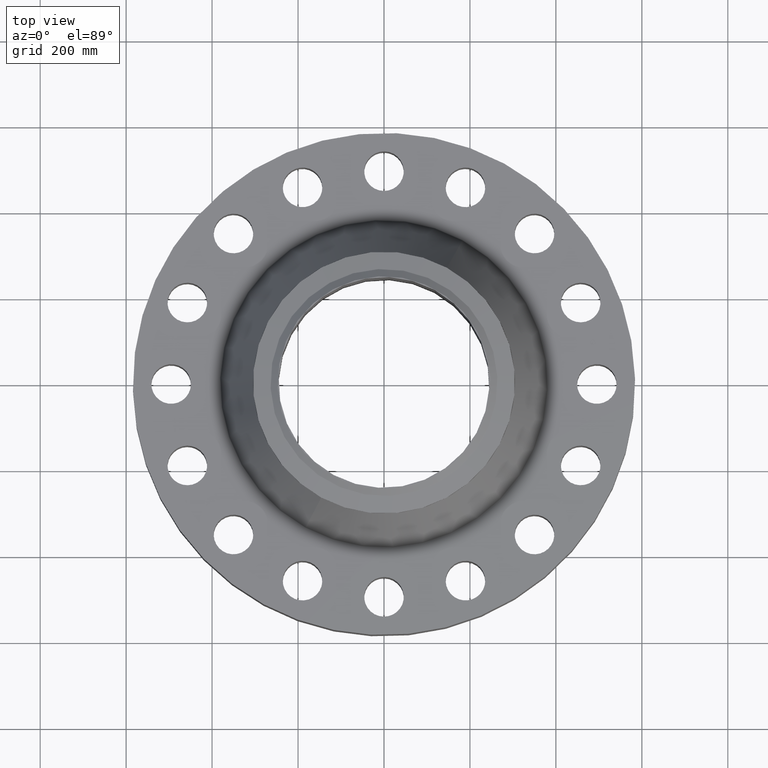
[diagram: clean part render]
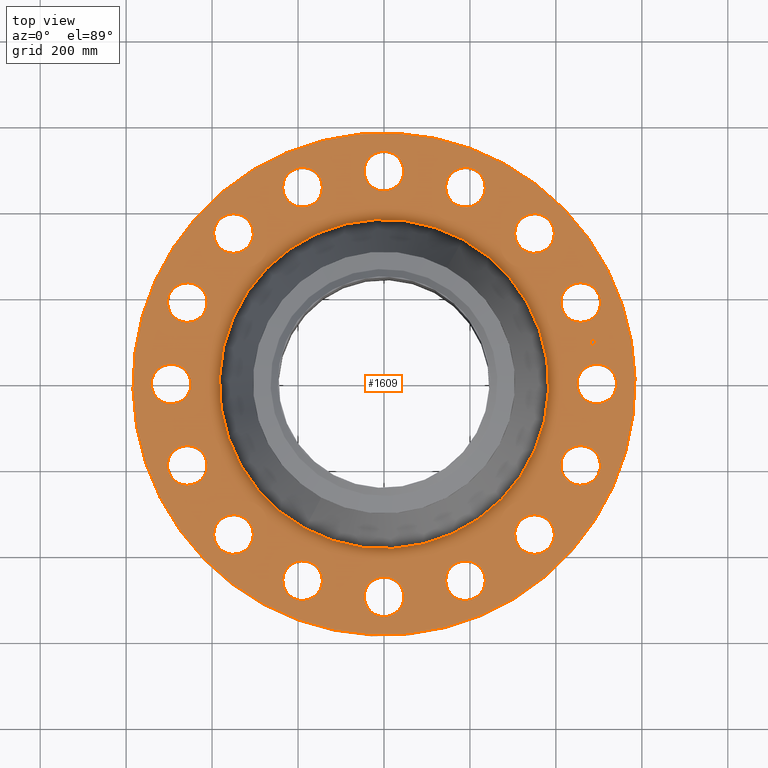
[diagram: same view with one face highlighted and labeled with its STEP entity id]
A machine part, top view. The second image highlights one B-rep face of the part: STEP entity #1609.
In plain terms, the highlighted planar face has unit normal (0, 0, -1).
Its self-contained STEP definition (entity closure, byte-faithful):
#65=AXIS2_PLACEMENT_3D('Circle Axis2P3D',#63,#64,$) ;
#82=AXIS2_PLACEMENT_3D('Circle Axis2P3D',#80,#81,$) ;
#115=AXIS2_PLACEMENT_3D('Circle Axis2P3D',#113,#114,$) ;
#139=AXIS2_PLACEMENT_3D('Circle Axis2P3D',#137,#138,$) ;
#156=AXIS2_PLACEMENT_3D('Circle Axis2P3D',#154,#155,$) ;
#191=AXIS2_PLACEMENT_3D('Circle Axis2P3D',#189,#190,$) ;
#890=AXIS2_PLACEMENT_3D('Circle Axis2P3D',#888,#889,$) ;
#902=AXIS2_PLACEMENT_3D('Circle Axis2P3D',#900,#901,$) ;
#933=AXIS2_PLACEMENT_3D('Circle Axis2P3D',#931,#932,$) ;
#945=AXIS2_PLACEMENT_3D('Circle Axis2P3D',#943,#944,$) ;
#976=AXIS2_PLACEMENT_3D('Circle Axis2P3D',#974,#975,$) ;
#988=AXIS2_PLACEMENT_3D('Circle Axis2P3D',#986,#987,$) ;
#1019=AXIS2_PLACEMENT_3D('Circle Axis2P3D',#1017,#1018,$) ;
#1031=AXIS2_PLACEMENT_3D('Circle Axis2P3D',#1029,#1030,$) ;
#1062=AXIS2_PLACEMENT_3D('Circle Axis2P3D',#1060,#1061,$) ;
#1074=AXIS2_PLACEMENT_3D('Circle Axis2P3D',#1072,#1073,$) ;
#1105=AXIS2_PLACEMENT_3D('Circle Axis2P3D',#1103,#1104,$) ;
#1117=AXIS2_PLACEMENT_3D('Circle Axis2P3D',#1115,#1116,$) ;
#1148=AXIS2_PLACEMENT_3D('Circle Axis2P3D',#1146,#1147,$) ;
#1160=AXIS2_PLACEMENT_3D('Circle Axis2P3D',#1158,#1159,$) ;
#1191=AXIS2_PLACEMENT_3D('Circle Axis2P3D',#1189,#1190,$) ;
#1203=AXIS2_PLACEMENT_3D('Circle Axis2P3D',#1201,#1202,$) ;
#1234=AXIS2_PLACEMENT_3D('Circle Axis2P3D',#1232,#1233,$) ;
#1246=AXIS2_PLACEMENT_3D('Circle Axis2P3D',#1244,#1245,$) ;
#1277=AXIS2_PLACEMENT_3D('Circle Axis2P3D',#1275,#1276,$) ;
#1289=AXIS2_PLACEMENT_3D('Circle Axis2P3D',#1287,#1288,$) ;
#1320=AXIS2_PLACEMENT_3D('Circle Axis2P3D',#1318,#1319,$) ;
#1332=AXIS2_PLACEMENT_3D('Circle Axis2P3D',#1330,#1331,$) ;
#1363=AXIS2_PLACEMENT_3D('Circle Axis2P3D',#1361,#1362,$) ;
#1375=AXIS2_PLACEMENT_3D('Circle Axis2P3D',#1373,#1374,$) ;
#1406=AXIS2_PLACEMENT_3D('Circle Axis2P3D',#1404,#1405,$) ;
#1418=AXIS2_PLACEMENT_3D('Circle Axis2P3D',#1416,#1417,$) ;
#1449=AXIS2_PLACEMENT_3D('Circle Axis2P3D',#1447,#1448,$) ;
#1461=AXIS2_PLACEMENT_3D('Circle Axis2P3D',#1459,#1460,$) ;
#1492=AXIS2_PLACEMENT_3D('Circle Axis2P3D',#1490,#1491,$) ;
#1504=AXIS2_PLACEMENT_3D('Circle Axis2P3D',#1502,#1503,$) ;
#1517=AXIS2_PLACEMENT_3D('Plane Axis2P3D',#1514,#1515,#1516) ;
#1593=AXIS2_PLACEMENT_3D('Circle Axis2P3D',#1591,#1592,$) ;
#1602=AXIS2_PLACEMENT_3D('Circle Axis2P3D',#1600,#1601,$) ;
#46=CARTESIAN_POINT('Vertex',(17.9071876502,0.87015735257,8.00000000003)) ;
#60=CARTESIAN_POINT('Vertex',(21.0928123499,-0.87015735257,8.00000000003)) ;
#63=CARTESIAN_POINT('Axis2P3D Location',(19.5000000001,0.,8.00000000003)) ;
#80=CARTESIAN_POINT('Axis2P3D Location',(19.5000000001,0.,8.00000000003)) ;
#110=CARTESIAN_POINT('Vertex',(-11.0267873879,-20.1843989236,8.00000000003)) ;
#113=CARTESIAN_POINT('Axis2P3D Location',(0.,0.,8.00000000003)) ;
#117=CARTESIAN_POINT('Vertex',(11.0267873879,20.1843989236,8.00000000003)) ;
#137=CARTESIAN_POINT('Axis2P3D Location',(0.,0.,8.00000000003)) ;
#154=CARTESIAN_POINT('Axis2P3D Location',(0.,0.,8.00000000003)) ;
#158=CARTESIAN_POINT('Vertex',(7.22925202427,13.2330570676,8.00000000003)) ;
#160=CARTESIAN_POINT('Vertex',(-7.22925202427,-13.2330570676,8.00000000003)) ;
#189=CARTESIAN_POINT('Axis2P3D Location',(0.,0.,8.00000000003)) ;
#878=CARTESIAN_POINT('Vertex',(-16.8770789573,6.0488634659,8.00000000003)) ;
#885=CARTESIAN_POINT('Vertex',(-19.1542228108,8.8757903964,8.00000000003)) ;
#888=CARTESIAN_POINT('Axis2P3D Location',(-18.015650884,7.46232693115,8.00000000003)) ;
#900=CARTESIAN_POINT('Axis2P3D Location',(-18.015650884,7.46232693115,8.00000000003)) ;
#921=CARTESIAN_POINT('Vertex',(13.2775879842,-12.0469996548,8.00000000003)) ;
#928=CARTESIAN_POINT('Vertex',(14.2995764822,-15.5301648116,8.00000000003)) ;
#931=CARTESIAN_POINT('Axis2P3D Location',(13.7885822332,-13.7885822332,8.00000000003)) ;
#943=CARTESIAN_POINT('Axis2P3D Location',(13.7885822332,-13.7885822332,8.00000000003)) ;
#964=CARTESIAN_POINT('Vertex',(-13.2775879842,12.0469996548,8.00000000003)) ;
#971=CARTESIAN_POINT('Vertex',(-14.2995764822,15.5301648116,8.00000000003)) ;
#974=CARTESIAN_POINT('Axis2P3D Location',(-13.7885822332,13.7885822332,8.00000000003)) ;
#986=CARTESIAN_POINT('Axis2P3D Location',(-13.7885822332,13.7885822332,8.00000000003)) ;
#1007=CARTESIAN_POINT('Vertex',(7.6567046021,-16.2110893525,8.00000000003)) ;
#1014=CARTESIAN_POINT('Vertex',(7.26794926019,-19.8202124156,8.00000000003)) ;
#1017=CARTESIAN_POINT('Axis2P3D Location',(7.46232693115,-18.015650884,8.00000000003)) ;
#1029=CARTESIAN_POINT('Axis2P3D Location',(7.46232693115,-18.015650884,8.00000000003)) ;
#1050=CARTESIAN_POINT('Vertex',(-7.6567046021,16.2110893525,8.00000000003)) ;
#1057=CARTESIAN_POINT('Vertex',(-7.26794926019,19.8202124156,8.00000000003)) ;
#1060=CARTESIAN_POINT('Axis2P3D Location',(-7.46232693115,18.015650884,8.00000000003)) ;
#1072=CARTESIAN_POINT('Axis2P3D Location',(-7.46232693115,18.015650884,8.00000000003)) ;
#1093=CARTESIAN_POINT('Vertex',(0.87015735257,-17.9071876502,8.00000000003)) ;
#1100=CARTESIAN_POINT('Vertex',(-0.87015735257,-21.0928123499,8.00000000003)) ;
#1103=CARTESIAN_POINT('Axis2P3D Location',(-1.04389924724E-015,-19.5000000001,8.00000000003)) ;
#1115=CARTESIAN_POINT('Axis2P3D Location',(-1.04389924724E-015,-19.5000000001,8.00000000003)) ;
#1136=CARTESIAN_POINT('Vertex',(-0.87015735257,17.9071876502,8.00000000003)) ;
#1143=CARTESIAN_POINT('Vertex',(0.87015735257,21.0928123499,8.00000000003)) ;
#1146=CARTESIAN_POINT('Axis2P3D Location',(-1.34416201111E-015,19.5000000001,8.00000000003)) ;
#1158=CARTESIAN_POINT('Axis2P3D Location',(-1.34416201111E-015,19.5000000001,8.00000000003)) ;
#1179=CARTESIAN_POINT('Vertex',(-6.0488634659,-16.8770789573,8.00000000003)) ;
#1186=CARTESIAN_POINT('Vertex',(-8.8757903964,-19.1542228108,8.00000000003)) ;
#1189=CARTESIAN_POINT('Axis2P3D Location',(-7.46232693115,-18.015650884,8.00000000003)) ;
#1201=CARTESIAN_POINT('Axis2P3D Location',(-7.46232693115,-18.015650884,8.00000000003)) ;
#1222=CARTESIAN_POINT('Vertex',(6.0488634659,16.8770789573,8.00000000003)) ;
#1229=CARTESIAN_POINT('Vertex',(8.8757903964,19.1542228108,8.00000000003)) ;
#1232=CARTESIAN_POINT('Axis2P3D Location',(7.46232693115,18.015650884,8.00000000003)) ;
#1244=CARTESIAN_POINT('Axis2P3D Location',(7.46232693115,18.015650884,8.00000000003)) ;
#1265=CARTESIAN_POINT('Vertex',(-12.0469996548,-13.2775879842,8.00000000003)) ;
#1272=CARTESIAN_POINT('Vertex',(-15.5301648116,-14.2995764822,8.00000000003)) ;
#1275=CARTESIAN_POINT('Axis2P3D Location',(-13.7885822332,-13.7885822332,8.00000000003)) ;
#1287=CARTESIAN_POINT('Axis2P3D Location',(-13.7885822332,-13.7885822332,8.00000000003)) ;
#1308=CARTESIAN_POINT('Vertex',(12.0469996548,13.2775879842,8.00000000003)) ;
#1315=CARTESIAN_POINT('Vertex',(15.5301648116,14.2995764822,8.00000000003)) ;
#1318=CARTESIAN_POINT('Axis2P3D Location',(13.7885822332,13.7885822332,8.00000000003)) ;
#1330=CARTESIAN_POINT('Axis2P3D Location',(13.7885822332,13.7885822332,8.00000000003)) ;
#1351=CARTESIAN_POINT('Vertex',(-16.2110893525,-7.6567046021,8.00000000003)) ;
#1358=CARTESIAN_POINT('Vertex',(-19.8202124156,-7.26794926019,8.00000000003)) ;
#1361=CARTESIAN_POINT('Axis2P3D Location',(-18.015650884,-7.46232693115,8.00000000003)) ;
#1373=CARTESIAN_POINT('Axis2P3D Location',(-18.015650884,-7.46232693115,8.00000000003)) ;
#1394=CARTESIAN_POINT('Vertex',(16.2110893525,7.6567046021,8.00000000003)) ;
#1401=CARTESIAN_POINT('Vertex',(19.8202124156,7.26794926019,8.00000000003)) ;
#1404=CARTESIAN_POINT('Axis2P3D Location',(18.015650884,7.46232693115,8.00000000003)) ;
#1416=CARTESIAN_POINT('Axis2P3D Location',(18.015650884,7.46232693115,8.00000000003)) ;
#1437=CARTESIAN_POINT('Vertex',(-17.9071876502,-0.87015735257,8.00000000003)) ;
#1444=CARTESIAN_POINT('Vertex',(-21.0928123499,0.87015735257,8.00000000003)) ;
#1447=CARTESIAN_POINT('Axis2P3D Location',(-19.5000000001,-2.38806125835E-015,8.00000000003)) ;
#1459=CARTESIAN_POINT('Axis2P3D Location',(-19.5000000001,-2.38806125835E-015,8.00000000003)) ;
#1480=CARTESIAN_POINT('Vertex',(16.8770789573,-6.0488634659,8.00000000003)) ;
#1487=CARTESIAN_POINT('Vertex',(19.1542228108,-8.8757903964,8.00000000003)) ;
#1490=CARTESIAN_POINT('Axis2P3D Location',(18.015650884,-7.46232693115,8.00000000003)) ;
#1502=CARTESIAN_POINT('Axis2P3D Location',(18.015650884,-7.46232693115,8.00000000003)) ;
#1514=CARTESIAN_POINT('Axis2P3D Location',(0.,23.0000000001,8.00000000003)) ;
#1591=CARTESIAN_POINT('Axis2P3D Location',(19.1253129679,3.80426127933,8.00000000003)) ;
#1595=CARTESIAN_POINT('Vertex',(19.0770281132,4.04700563623,8.00000000003)) ;
#1597=CARTESIAN_POINT('Vertex',(19.1735978226,3.56151692243,8.00000000003)) ;
#1600=CARTESIAN_POINT('Axis2P3D Location',(19.1253129679,3.80426127933,8.00000000003)) ;
#64=DIRECTION('Axis2P3D Direction',(0.,-0.,-0.0393700787402)) ;
#81=DIRECTION('Axis2P3D Direction',(0.,-0.,-0.0393700787402)) ;
#114=DIRECTION('Axis2P3D Direction',(0.,0.,-0.0393700787402)) ;
#138=DIRECTION('Axis2P3D Direction',(0.,0.,-0.0393700787402)) ;
#155=DIRECTION('Axis2P3D Direction',(0.,0.,-0.0393700787402)) ;
#190=DIRECTION('Axis2P3D Direction',(0.,0.,-0.0393700787402)) ;
#889=DIRECTION('Axis2P3D Direction',(0.,0.,-0.0393700787402)) ;
#901=DIRECTION('Axis2P3D Direction',(0.,0.,-0.0393700787402)) ;
#932=DIRECTION('Axis2P3D Direction',(0.,-0.,-0.0393700787402)) ;
#944=DIRECTION('Axis2P3D Direction',(0.,-0.,-0.0393700787402)) ;
#975=DIRECTION('Axis2P3D Direction',(0.,0.,-0.0393700787402)) ;
#987=DIRECTION('Axis2P3D Direction',(0.,0.,-0.0393700787402)) ;
#1018=DIRECTION('Axis2P3D Direction',(0.,-0.,-0.0393700787402)) ;
#1030=DIRECTION('Axis2P3D Direction',(0.,-0.,-0.0393700787402)) ;
#1061=DIRECTION('Axis2P3D Direction',(0.,0.,-0.0393700787402)) ;
#1073=DIRECTION('Axis2P3D Direction',(0.,0.,-0.0393700787402)) ;
#1104=DIRECTION('Axis2P3D Direction',(0.,-0.,-0.0393700787402)) ;
#1116=DIRECTION('Axis2P3D Direction',(0.,-0.,-0.0393700787402)) ;
#1147=DIRECTION('Axis2P3D Direction',(0.,0.,-0.0393700787402)) ;
#1159=DIRECTION('Axis2P3D Direction',(0.,0.,-0.0393700787402)) ;
#1190=DIRECTION('Axis2P3D Direction',(-0.,0.,-0.0393700787402)) ;
#1202=DIRECTION('Axis2P3D Direction',(-0.,0.,-0.0393700787402)) ;
#1233=DIRECTION('Axis2P3D Direction',(0.,0.,-0.0393700787402)) ;
#1245=DIRECTION('Axis2P3D Direction',(0.,0.,-0.0393700787402)) ;
#1276=DIRECTION('Axis2P3D Direction',(-0.,0.,-0.0393700787402)) ;
#1288=DIRECTION('Axis2P3D Direction',(-0.,0.,-0.0393700787402)) ;
#1319=DIRECTION('Axis2P3D Direction',(0.,0.,-0.0393700787402)) ;
#1331=DIRECTION('Axis2P3D Direction',(0.,0.,-0.0393700787402)) ;
#1362=DIRECTION('Axis2P3D Direction',(-0.,0.,-0.0393700787402)) ;
#1374=DIRECTION('Axis2P3D Direction',(-0.,0.,-0.0393700787402)) ;
#1405=DIRECTION('Axis2P3D Direction',(0.,0.,-0.0393700787402)) ;
#1417=DIRECTION('Axis2P3D Direction',(0.,0.,-0.0393700787402)) ;
#1448=DIRECTION('Axis2P3D Direction',(-0.,0.,-0.0393700787402)) ;
#1460=DIRECTION('Axis2P3D Direction',(-0.,0.,-0.0393700787402)) ;
#1491=DIRECTION('Axis2P3D Direction',(0.,-0.,-0.0393700787402)) ;
#1503=DIRECTION('Axis2P3D Direction',(0.,-0.,-0.0393700787402)) ;
#1515=DIRECTION('Axis2P3D Direction',(0.,0.,-0.0393700787402)) ;
#1516=DIRECTION('Axis2P3D XDirection',(0.0393700787402,0.,0.)) ;
#1592=DIRECTION('Axis2P3D Direction',(0.,0.,-0.0393700787402)) ;
#1601=DIRECTION('Axis2P3D Direction',(0.,0.,-0.0393700787402)) ;
#1520=ORIENTED_EDGE('',*,*,#141,.F.) ;
#1521=ORIENTED_EDGE('',*,*,#119,.F.) ;
#1524=ORIENTED_EDGE('',*,*,#67,.T.) ;
#1525=ORIENTED_EDGE('',*,*,#84,.T.) ;
#1528=ORIENTED_EDGE('',*,*,#193,.T.) ;
#1529=ORIENTED_EDGE('',*,*,#162,.T.) ;
#1532=ORIENTED_EDGE('',*,*,#1506,.T.) ;
#1533=ORIENTED_EDGE('',*,*,#1494,.T.) ;
#1536=ORIENTED_EDGE('',*,*,#947,.T.) ;
#1537=ORIENTED_EDGE('',*,*,#935,.T.) ;
#1540=ORIENTED_EDGE('',*,*,#1033,.T.) ;
#1541=ORIENTED_EDGE('',*,*,#1021,.T.) ;
#1544=ORIENTED_EDGE('',*,*,#1119,.T.) ;
#1545=ORIENTED_EDGE('',*,*,#1107,.T.) ;
#1548=ORIENTED_EDGE('',*,*,#1205,.T.) ;
#1549=ORIENTED_EDGE('',*,*,#1193,.T.) ;
#1552=ORIENTED_EDGE('',*,*,#1291,.T.) ;
#1553=ORIENTED_EDGE('',*,*,#1279,.T.) ;
#1556=ORIENTED_EDGE('',*,*,#1377,.T.) ;
#1557=ORIENTED_EDGE('',*,*,#1365,.T.) ;
#1560=ORIENTED_EDGE('',*,*,#1463,.T.) ;
#1561=ORIENTED_EDGE('',*,*,#1451,.T.) ;
#1564=ORIENTED_EDGE('',*,*,#904,.T.) ;
#1565=ORIENTED_EDGE('',*,*,#892,.T.) ;
#1568=ORIENTED_EDGE('',*,*,#990,.T.) ;
#1569=ORIENTED_EDGE('',*,*,#978,.T.) ;
#1572=ORIENTED_EDGE('',*,*,#1076,.T.) ;
#1573=ORIENTED_EDGE('',*,*,#1064,.T.) ;
#1576=ORIENTED_EDGE('',*,*,#1162,.T.) ;
#1577=ORIENTED_EDGE('',*,*,#1150,.T.) ;
#1580=ORIENTED_EDGE('',*,*,#1248,.T.) ;
#1581=ORIENTED_EDGE('',*,*,#1236,.T.) ;
#1584=ORIENTED_EDGE('',*,*,#1334,.T.) ;
#1585=ORIENTED_EDGE('',*,*,#1322,.T.) ;
#1588=ORIENTED_EDGE('',*,*,#1420,.T.) ;
#1589=ORIENTED_EDGE('',*,*,#1408,.T.) ;
#1606=ORIENTED_EDGE('',*,*,#1599,.T.) ;
#1607=ORIENTED_EDGE('',*,*,#1604,.T.) ;
#1526=FACE_BOUND('',#1523,.T.) ;
#1530=FACE_BOUND('',#1527,.T.) ;
#1534=FACE_BOUND('',#1531,.T.) ;
#1538=FACE_BOUND('',#1535,.T.) ;
#1542=FACE_BOUND('',#1539,.T.) ;
#1546=FACE_BOUND('',#1543,.T.) ;
#1550=FACE_BOUND('',#1547,.T.) ;
#1554=FACE_BOUND('',#1551,.T.) ;
#1558=FACE_BOUND('',#1555,.T.) ;
#1562=FACE_BOUND('',#1559,.T.) ;
#1566=FACE_BOUND('',#1563,.T.) ;
#1570=FACE_BOUND('',#1567,.T.) ;
#1574=FACE_BOUND('',#1571,.T.) ;
#1578=FACE_BOUND('',#1575,.T.) ;
#1582=FACE_BOUND('',#1579,.T.) ;
#1586=FACE_BOUND('',#1583,.T.) ;
#1590=FACE_BOUND('',#1587,.T.) ;
#1608=FACE_BOUND('',#1605,.T.) ;
#1609=ADVANCED_FACE('PartBody',(#1522,#1526,#1530,#1534,#1538,#1542,#1546,#1550,#1554,#1558,#1562,#1566,#1570,#1574,#1578,#1582,#1586,#1590,#1608),#1518,.F.) ;
#66=CIRCLE('generated circle',#65,1.81500000001) ;
#83=CIRCLE('generated circle',#82,1.81500000001) ;
#116=CIRCLE('generated circle',#115,23.0000000001) ;
#140=CIRCLE('generated circle',#139,23.0000000001) ;
#157=CIRCLE('generated circle',#156,15.0789881685) ;
#192=CIRCLE('generated circle',#191,15.0789881685) ;
#891=CIRCLE('generated circle',#890,1.81500000001) ;
#903=CIRCLE('generated circle',#902,1.81500000001) ;
#934=CIRCLE('generated circle',#933,1.81500000001) ;
#946=CIRCLE('generated circle',#945,1.81500000001) ;
#977=CIRCLE('generated circle',#976,1.81500000001) ;
#989=CIRCLE('generated circle',#988,1.81500000001) ;
#1020=CIRCLE('generated circle',#1019,1.81500000001) ;
#1032=CIRCLE('generated circle',#1031,1.81500000001) ;
#1063=CIRCLE('generated circle',#1062,1.81500000001) ;
#1075=CIRCLE('generated circle',#1074,1.81500000001) ;
#1106=CIRCLE('generated circle',#1105,1.81500000001) ;
#1118=CIRCLE('generated circle',#1117,1.81500000001) ;
#1149=CIRCLE('generated circle',#1148,1.81500000001) ;
#1161=CIRCLE('generated circle',#1160,1.81500000001) ;
#1192=CIRCLE('generated circle',#1191,1.81500000001) ;
#1204=CIRCLE('generated circle',#1203,1.81500000001) ;
#1235=CIRCLE('generated circle',#1234,1.81500000001) ;
#1247=CIRCLE('generated circle',#1246,1.81500000001) ;
#1278=CIRCLE('generated circle',#1277,1.81500000001) ;
#1290=CIRCLE('generated circle',#1289,1.81500000001) ;
#1321=CIRCLE('generated circle',#1320,1.81500000001) ;
#1333=CIRCLE('generated circle',#1332,1.81500000001) ;
#1364=CIRCLE('generated circle',#1363,1.81500000001) ;
#1376=CIRCLE('generated circle',#1375,1.81500000001) ;
#1407=CIRCLE('generated circle',#1406,1.81500000001) ;
#1419=CIRCLE('generated circle',#1418,1.81500000001) ;
#1450=CIRCLE('generated circle',#1449,1.81500000001) ;
#1462=CIRCLE('generated circle',#1461,1.81500000001) ;
#1493=CIRCLE('generated circle',#1492,1.81500000001) ;
#1505=CIRCLE('generated circle',#1504,1.81500000001) ;
#1594=CIRCLE('generated circle',#1593,0.247500000001) ;
#1603=CIRCLE('generated circle',#1602,0.247500000001) ;
#67=EDGE_CURVE('',#47,#61,#66,.T.) ;
#84=EDGE_CURVE('',#61,#47,#83,.T.) ;
#119=EDGE_CURVE('',#111,#118,#116,.T.) ;
#141=EDGE_CURVE('',#118,#111,#140,.T.) ;
#162=EDGE_CURVE('',#159,#161,#157,.T.) ;
#193=EDGE_CURVE('',#161,#159,#192,.T.) ;
#892=EDGE_CURVE('',#879,#886,#891,.T.) ;
#904=EDGE_CURVE('',#886,#879,#903,.T.) ;
#935=EDGE_CURVE('',#922,#929,#934,.T.) ;
#947=EDGE_CURVE('',#929,#922,#946,.T.) ;
#978=EDGE_CURVE('',#965,#972,#977,.T.) ;
#990=EDGE_CURVE('',#972,#965,#989,.T.) ;
#1021=EDGE_CURVE('',#1008,#1015,#1020,.T.) ;
#1033=EDGE_CURVE('',#1015,#1008,#1032,.T.) ;
#1064=EDGE_CURVE('',#1051,#1058,#1063,.T.) ;
#1076=EDGE_CURVE('',#1058,#1051,#1075,.T.) ;
#1107=EDGE_CURVE('',#1094,#1101,#1106,.T.) ;
#1119=EDGE_CURVE('',#1101,#1094,#1118,.T.) ;
#1150=EDGE_CURVE('',#1137,#1144,#1149,.T.) ;
#1162=EDGE_CURVE('',#1144,#1137,#1161,.T.) ;
#1193=EDGE_CURVE('',#1180,#1187,#1192,.T.) ;
#1205=EDGE_CURVE('',#1187,#1180,#1204,.T.) ;
#1236=EDGE_CURVE('',#1223,#1230,#1235,.T.) ;
#1248=EDGE_CURVE('',#1230,#1223,#1247,.T.) ;
#1279=EDGE_CURVE('',#1266,#1273,#1278,.T.) ;
#1291=EDGE_CURVE('',#1273,#1266,#1290,.T.) ;
#1322=EDGE_CURVE('',#1309,#1316,#1321,.T.) ;
#1334=EDGE_CURVE('',#1316,#1309,#1333,.T.) ;
#1365=EDGE_CURVE('',#1352,#1359,#1364,.T.) ;
#1377=EDGE_CURVE('',#1359,#1352,#1376,.T.) ;
#1408=EDGE_CURVE('',#1395,#1402,#1407,.T.) ;
#1420=EDGE_CURVE('',#1402,#1395,#1419,.T.) ;
#1451=EDGE_CURVE('',#1438,#1445,#1450,.T.) ;
#1463=EDGE_CURVE('',#1445,#1438,#1462,.T.) ;
#1494=EDGE_CURVE('',#1481,#1488,#1493,.T.) ;
#1506=EDGE_CURVE('',#1488,#1481,#1505,.T.) ;
#1599=EDGE_CURVE('',#1596,#1598,#1594,.T.) ;
#1604=EDGE_CURVE('',#1598,#1596,#1603,.T.) ;
#1519=EDGE_LOOP('',(#1520,#1521)) ;
#1523=EDGE_LOOP('',(#1524,#1525)) ;
#1527=EDGE_LOOP('',(#1528,#1529)) ;
#1531=EDGE_LOOP('',(#1532,#1533)) ;
#1535=EDGE_LOOP('',(#1536,#1537)) ;
#1539=EDGE_LOOP('',(#1540,#1541)) ;
#1543=EDGE_LOOP('',(#1544,#1545)) ;
#1547=EDGE_LOOP('',(#1548,#1549)) ;
#1551=EDGE_LOOP('',(#1552,#1553)) ;
#1555=EDGE_LOOP('',(#1556,#1557)) ;
#1559=EDGE_LOOP('',(#1560,#1561)) ;
#1563=EDGE_LOOP('',(#1564,#1565)) ;
#1567=EDGE_LOOP('',(#1568,#1569)) ;
#1571=EDGE_LOOP('',(#1572,#1573)) ;
#1575=EDGE_LOOP('',(#1576,#1577)) ;
#1579=EDGE_LOOP('',(#1580,#1581)) ;
#1583=EDGE_LOOP('',(#1584,#1585)) ;
#1587=EDGE_LOOP('',(#1588,#1589)) ;
#1605=EDGE_LOOP('',(#1606,#1607)) ;
#1522=FACE_OUTER_BOUND('',#1519,.T.) ;
#1518=PLANE('',#1517) ;
#47=VERTEX_POINT('',#46) ;
#61=VERTEX_POINT('',#60) ;
#111=VERTEX_POINT('',#110) ;
#118=VERTEX_POINT('',#117) ;
#159=VERTEX_POINT('',#158) ;
#161=VERTEX_POINT('',#160) ;
#879=VERTEX_POINT('',#878) ;
#886=VERTEX_POINT('',#885) ;
#922=VERTEX_POINT('',#921) ;
#929=VERTEX_POINT('',#928) ;
#965=VERTEX_POINT('',#964) ;
#972=VERTEX_POINT('',#971) ;
#1008=VERTEX_POINT('',#1007) ;
#1015=VERTEX_POINT('',#1014) ;
#1051=VERTEX_POINT('',#1050) ;
#1058=VERTEX_POINT('',#1057) ;
#1094=VERTEX_POINT('',#1093) ;
#1101=VERTEX_POINT('',#1100) ;
#1137=VERTEX_POINT('',#1136) ;
#1144=VERTEX_POINT('',#1143) ;
#1180=VERTEX_POINT('',#1179) ;
#1187=VERTEX_POINT('',#1186) ;
#1223=VERTEX_POINT('',#1222) ;
#1230=VERTEX_POINT('',#1229) ;
#1266=VERTEX_POINT('',#1265) ;
#1273=VERTEX_POINT('',#1272) ;
#1309=VERTEX_POINT('',#1308) ;
#1316=VERTEX_POINT('',#1315) ;
#1352=VERTEX_POINT('',#1351) ;
#1359=VERTEX_POINT('',#1358) ;
#1395=VERTEX_POINT('',#1394) ;
#1402=VERTEX_POINT('',#1401) ;
#1438=VERTEX_POINT('',#1437) ;
#1445=VERTEX_POINT('',#1444) ;
#1481=VERTEX_POINT('',#1480) ;
#1488=VERTEX_POINT('',#1487) ;
#1596=VERTEX_POINT('',#1595) ;
#1598=VERTEX_POINT('',#1597) ;